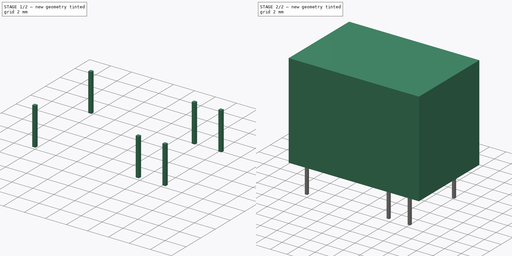
[diagram: build sequence overview — one tinted view per stage of 2, left to right]
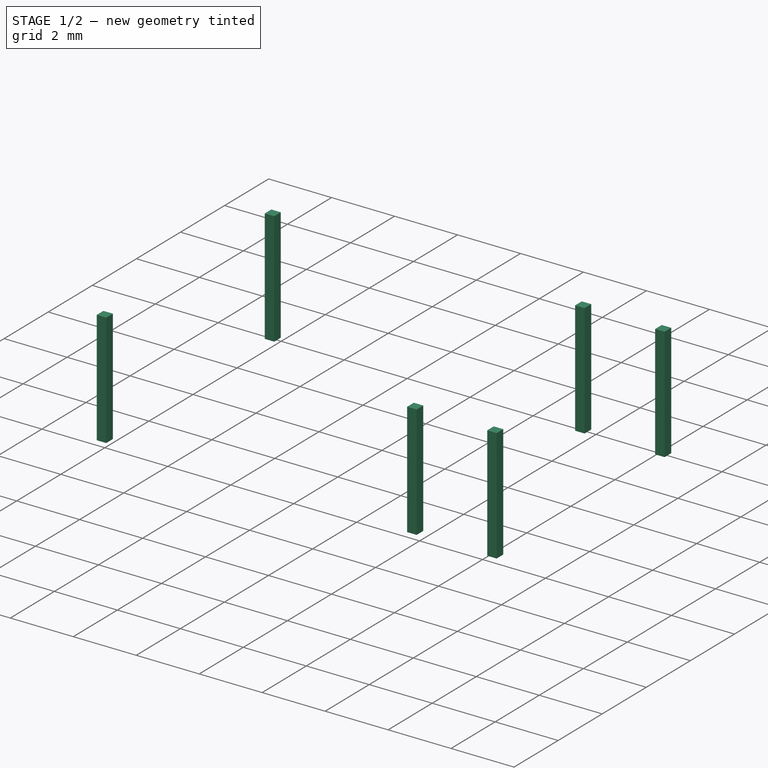
[diagram: stage 1 of 2 — iso view after this stage's code; geometry added in this stage tinted green]
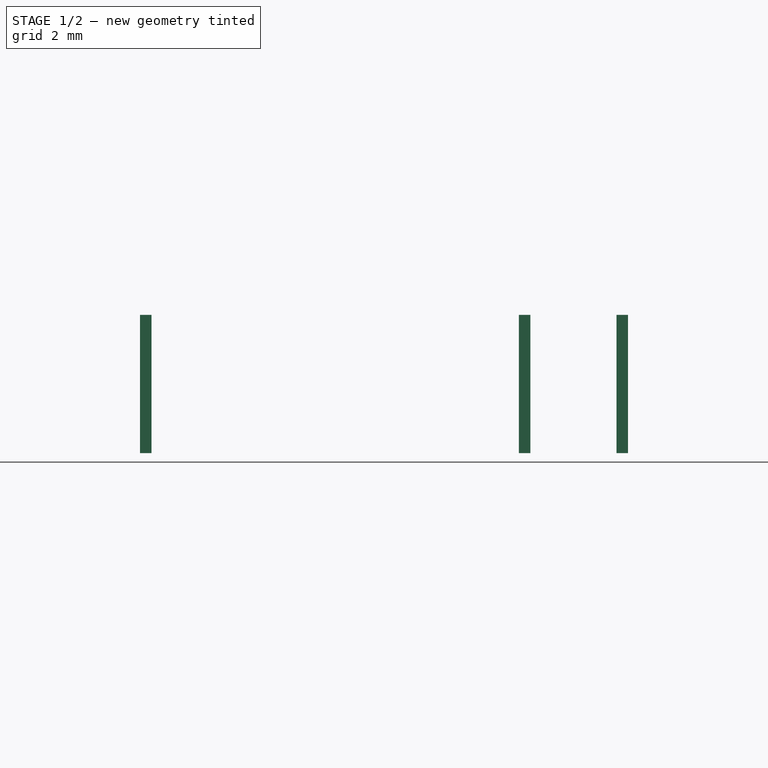
[diagram: stage 1 of 2 — front view after this stage's code; geometry added in this stage tinted green]
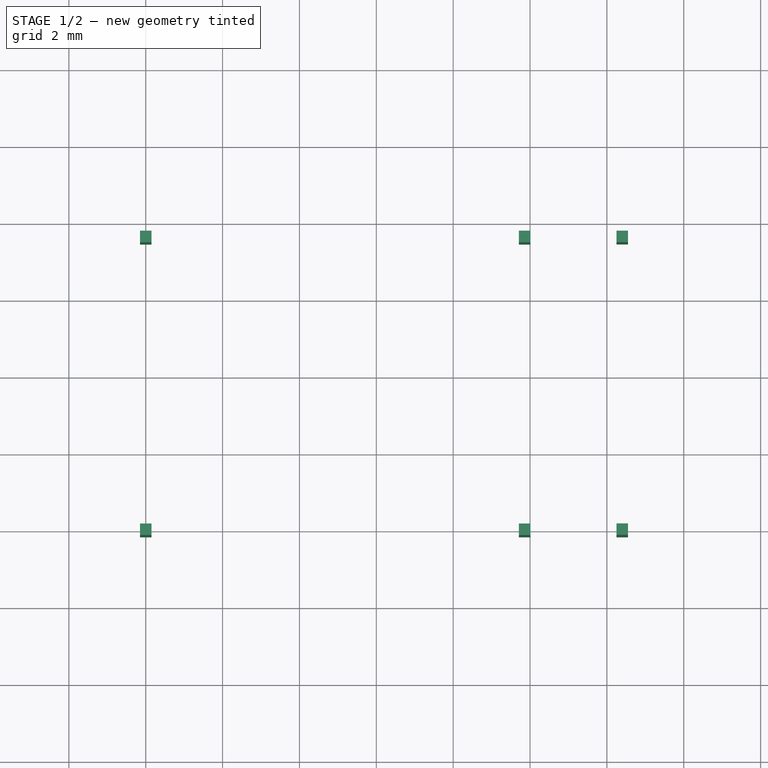
[diagram: stage 1 of 2 — top view after this stage's code; geometry added in this stage tinted green]
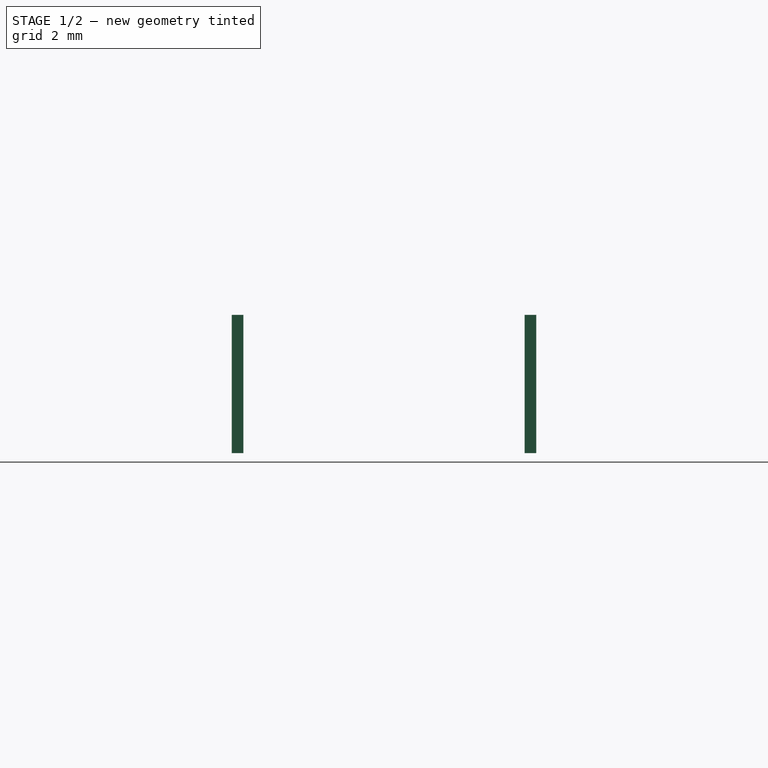
[diagram: stage 1 of 2 — right view after this stage's code; geometry added in this stage tinted green]
FCSTD DOCUMENT  (FreeCAD 0.16R6703 (Git))
Label: Relay_SPDT_HJR-4102
License: All rights reserved
LicenseURL: http://en.wikipedia.org/wiki/All_rights_reserved
objects: Sketcher::SketchObject×2, PartDesign::Pad×2
note: 6 computed .brp shape members not serialized (recipe doc carries the construction recipe); baked Part::Feature solids carry a one-line shape summary decoded from their .brp

FEATURE [Sketcher::SketchObject] Sketch001
  sketch-geometry (24):
    g0: LineSegment StartX=-0.15 StartY=-0.15 StartZ=0 EndX=0.15 EndY=-0.15 EndZ=0
    g1: LineSegment StartX=0.15 StartY=-0.15 StartZ=0 EndX=0.15 EndY=0.15 EndZ=0
    g2: LineSegment StartX=0.15 StartY=0.15 StartZ=0 EndX=-0.15 EndY=0.15 EndZ=0
    g3: LineSegment StartX=-0.15 StartY=0.15 StartZ=0 EndX=-0.15 EndY=-0.15 EndZ=0
    g4: LineSegment StartX=10.01 StartY=0.15 StartZ=0 EndX=9.71 EndY=0.15 EndZ=0
    g5: LineSegment StartX=9.71 StartY=0.15 StartZ=0 EndX=9.71 EndY=-0.15 EndZ=0
    g6: LineSegment StartX=9.71 StartY=-0.15 StartZ=0 EndX=10.01 EndY=-0.15 EndZ=0
    g7: LineSegment StartX=10.01 StartY=-0.15 StartZ=0 EndX=10.01 EndY=0.15 EndZ=0
    g8: LineSegment StartX=-0.15 StartY=7.77 StartZ=0 EndX=0.15 EndY=7.77 EndZ=0
    g9: LineSegment StartX=0.15 StartY=7.77 StartZ=0 EndX=0.15 EndY=7.47 EndZ=0
    g10: LineSegment StartX=0.15 StartY=7.47 StartZ=0 EndX=-0.15 EndY=7.47 EndZ=0
    g11: LineSegment StartX=-0.15 StartY=7.47 StartZ=0 EndX=-0.15 EndY=7.77 EndZ=0
    g12: LineSegment StartX=10.01 StartY=7.47 StartZ=0 EndX=9.71 EndY=7.47 EndZ=0
    g13: LineSegment StartX=9.71 StartY=7.47 StartZ=0 EndX=9.71 EndY=7.77 EndZ=0
    g14: LineSegment StartX=9.71 StartY=7.77 StartZ=0 EndX=10.01 EndY=7.77 EndZ=0
    g15: LineSegment StartX=10.01 StartY=7.77 StartZ=0 EndX=10.01 EndY=7.47 EndZ=0
    g16: LineSegment StartX=12.55 StartY=0.151869 StartZ=0 EndX=12.25 EndY=0.151869 EndZ=0
    g17: LineSegment StartX=12.25 StartY=0.151869 StartZ=0 EndX=12.25 EndY=-0.148131 EndZ=0
    g18: LineSegment StartX=12.25 StartY=-0.148131 StartZ=0 EndX=12.55 EndY=-0.148131 EndZ=0
    g19: LineSegment StartX=12.55 StartY=-0.148131 StartZ=0 EndX=12.55 EndY=0.151869 EndZ=0
    g20: LineSegment StartX=12.55 StartY=7.47187 StartZ=0 EndX=12.25 EndY=7.47187 EndZ=0
    g21: LineSegment StartX=12.25 StartY=7.47187 StartZ=0 EndX=12.25 EndY=7.77187 EndZ=0
    g22: LineSegment StartX=12.25 StartY=7.77187 StartZ=0 EndX=12.55 EndY=7.77187 EndZ=0
    g23: LineSegment StartX=12.55 StartY=7.77187 StartZ=0 EndX=12.55 EndY=7.47187 EndZ=0
  constraints (69):
    c: Coincident(g0,g1)
    c: Coincident(g1,g2)
    c: Coincident(g2,g3)
    c: Coincident(g3,g0)
    c: Horizontal(g0)
    c: Horizontal(g2)
    c: Vertical(g1)
    c: Vertical(g3)
    c: DistanceX(g2,g2) = 0.3
    c: DistanceY(g1,g1) = 0.3
    c: DistanceX(g0,g-1) = 0.15
    c: DistanceY(g0,g-1) = 0.15
    c: Coincident(g4,g5)
    c: Coincident(g5,g6)
    c: Coincident(g6,g7)
    c: Coincident(g7,g4)
    c: Horizontal(g4)
    c: Horizontal(g6)
    c: Vertical(g5)
    c: Vertical(g7)
    c: Equal(g2,g6) = 0.3
    c: Equal(g1,g5) = 0.3
    c: Coincident(g8,g9)
    c: Coincident(g9,g10)
    c: Coincident(g10,g11)
    c: Coincident(g11,g8)
    c: Horizontal(g8)
    c: Horizontal(g10)
    c: Vertical(g9)
    c: Vertical(g11)
    c: Equal(g2,g10) = 0.3
    c: Equal(g1,g9) = 0.3
    c: Coincident(g12,g13)
    c: Coincident(g13,g14)
    c: Coincident(g14,g15)
    c: Coincident(g15,g12)
    c: Horizontal(g12)
    c: Horizontal(g14)
    c: Vertical(g13)
    c: Vertical(g15)
    c: DistanceX(g2,g6) = 10.16
    c: DistanceY(g2,g14) = 7.62
    c: DistanceY(g15,g15) = 0.3
    c: DistanceY(g2,g8) = 7.62
    c: DistanceX(g8,g14) = 10.16
    c: DistanceX(g8,g2) = 0
    c: DistanceY(g1,g4) = 0
    c: DistanceX(g14,g14) = 0.3
    c: Coincident(g16,g17)
    c: Coincident(g17,g18)
    c: Coincident(g18,g19)
    c: Coincident(g19,g16)
    c: Horizontal(g16)
    c: Horizontal(g18)
    c: Vertical(g17)
    c: Vertical(g19)
    c: Coincident(g20,g21)
    c: Coincident(g21,g22)
    c: Coincident(g22,g23)
    c: Coincident(g23,g20)
    c: Horizontal(g20)
    c: Horizontal(g22)
    c: Vertical(g21)
    c: Vertical(g23)
    c: Equal(g15,g23) = 0.3
    c: Equal(g14,g22) = 0.3
    c: DistanceX(g13,g21) = 2.54
    c: DistanceX(g4,g16) = 2.54
    c: DistanceX(g18,g18) = 0.3
FEATURE [PartDesign::Pad] Pad001
  Length = 3.6
  Length2 = 100
  Reversed = true
  Sketch = -> Sketch001
  Type = 0
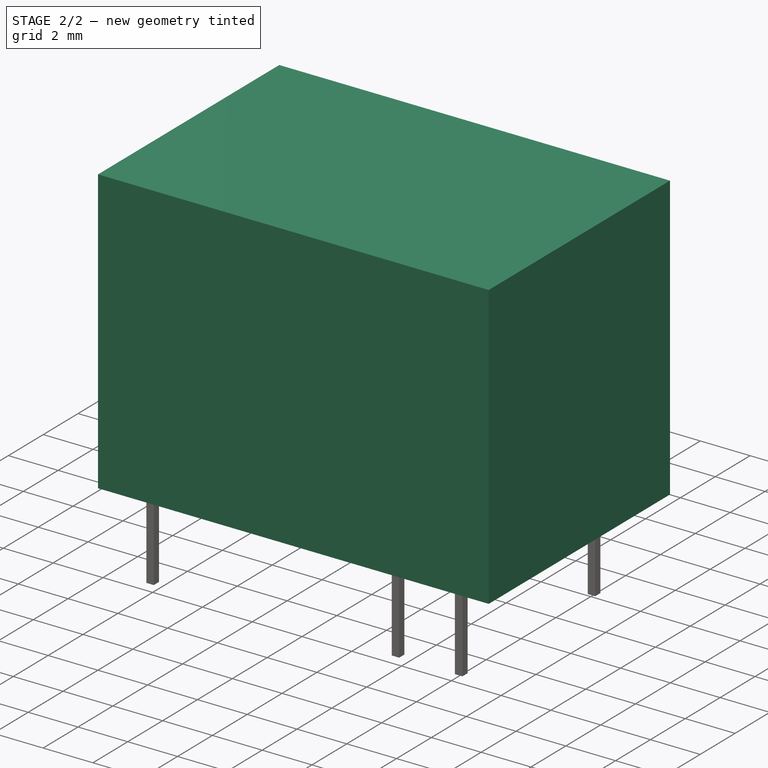
[diagram: stage 2 of 2 — iso view after this stage's code; geometry added in this stage tinted green]
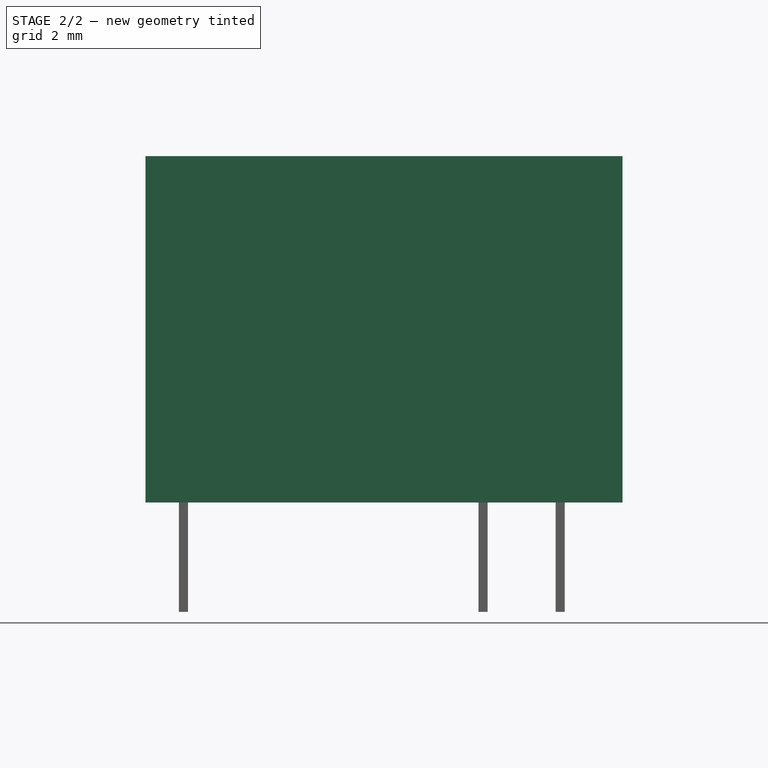
[diagram: stage 2 of 2 — front view after this stage's code; geometry added in this stage tinted green]
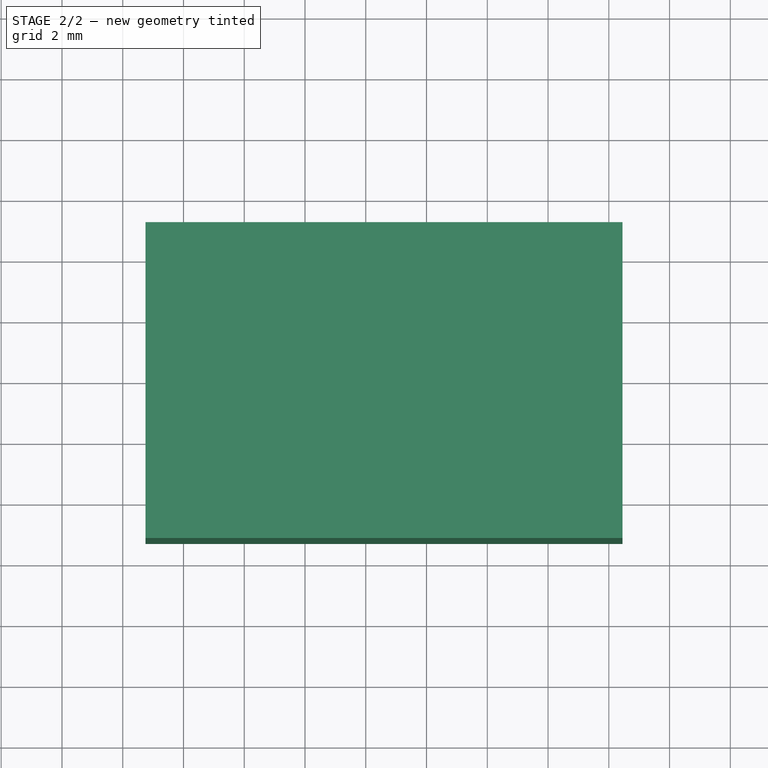
[diagram: stage 2 of 2 — top view after this stage's code; geometry added in this stage tinted green]
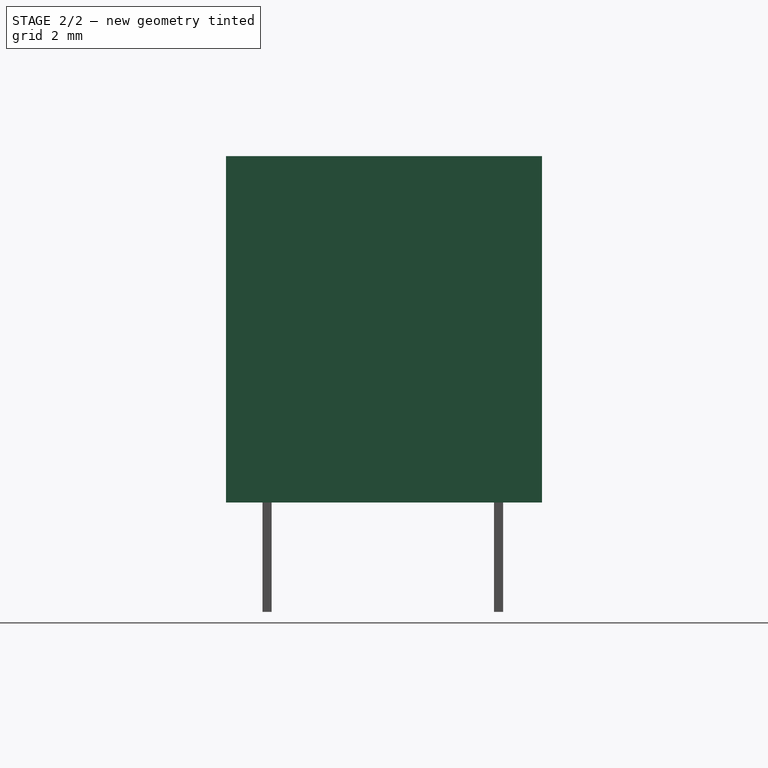
[diagram: stage 2 of 2 — right view after this stage's code; geometry added in this stage tinted green]
FEATURE [Sketcher::SketchObject] Sketch
  sketch-geometry (4):
    g0: LineSegment StartX=-1.25 StartY=-1.35 StartZ=0 EndX=14.45 EndY=-1.35 EndZ=0
    g1: LineSegment StartX=14.45 StartY=-1.35 StartZ=0 EndX=14.45 EndY=9.05 EndZ=0
    g2: LineSegment StartX=14.45 StartY=9.05 StartZ=0 EndX=-1.25 EndY=9.05 EndZ=0
    g3: LineSegment StartX=-1.25 StartY=9.05 StartZ=0 EndX=-1.25 EndY=-1.35 EndZ=0
  constraints (12):
    c: Coincident(g0,g1)
    c: Coincident(g1,g2)
    c: Coincident(g2,g3)
    c: Coincident(g3,g0)
    c: Horizontal(g0)
    c: Horizontal(g2)
    c: Vertical(g1)
    c: Vertical(g3)
    c: DistanceX(g2,g2) = 15.7
    c: DistanceY(g1,g1) = 10.4
    c: DistanceX(g0,g-1) = 1.25
    c: DistanceY(g0,g-1) = 1.35
FEATURE [PartDesign::Pad] Pad
  Length = 11.4
  Length2 = 100
  Sketch = -> Sketch
  Type = 0
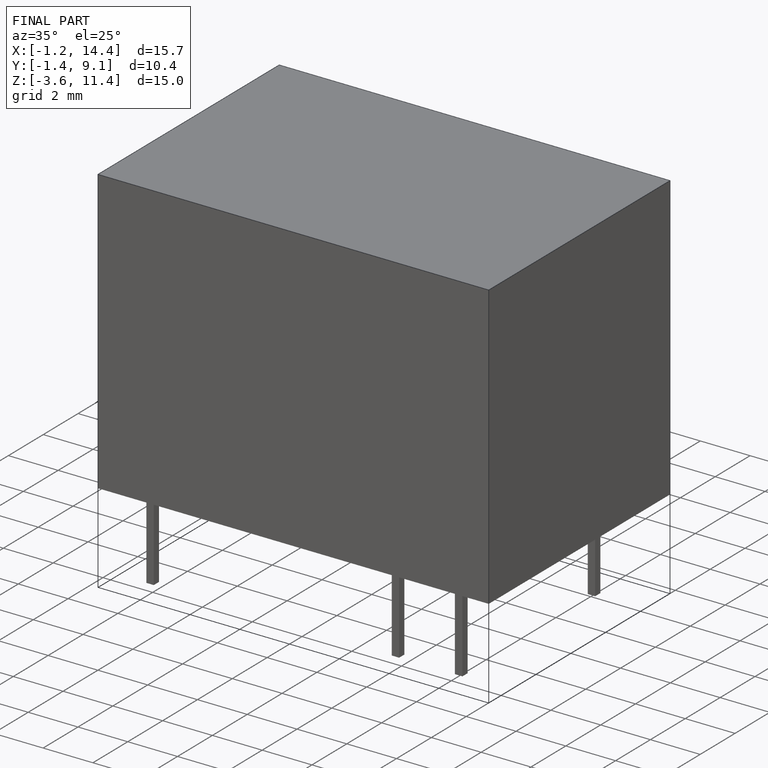
[diagram: finished part — iso view with bounding-box wireframe]
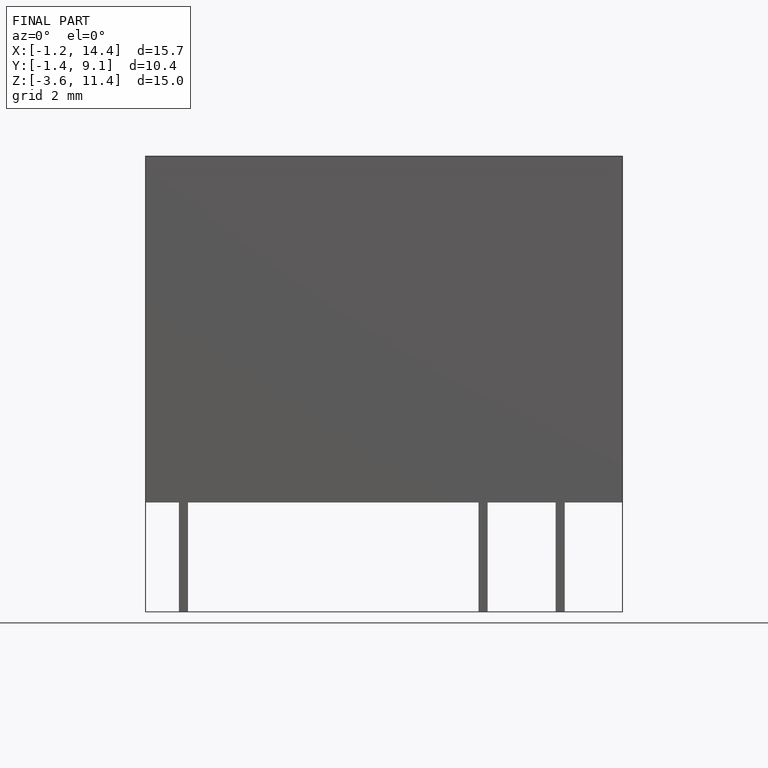
[diagram: finished part — front view with bounding-box wireframe]
